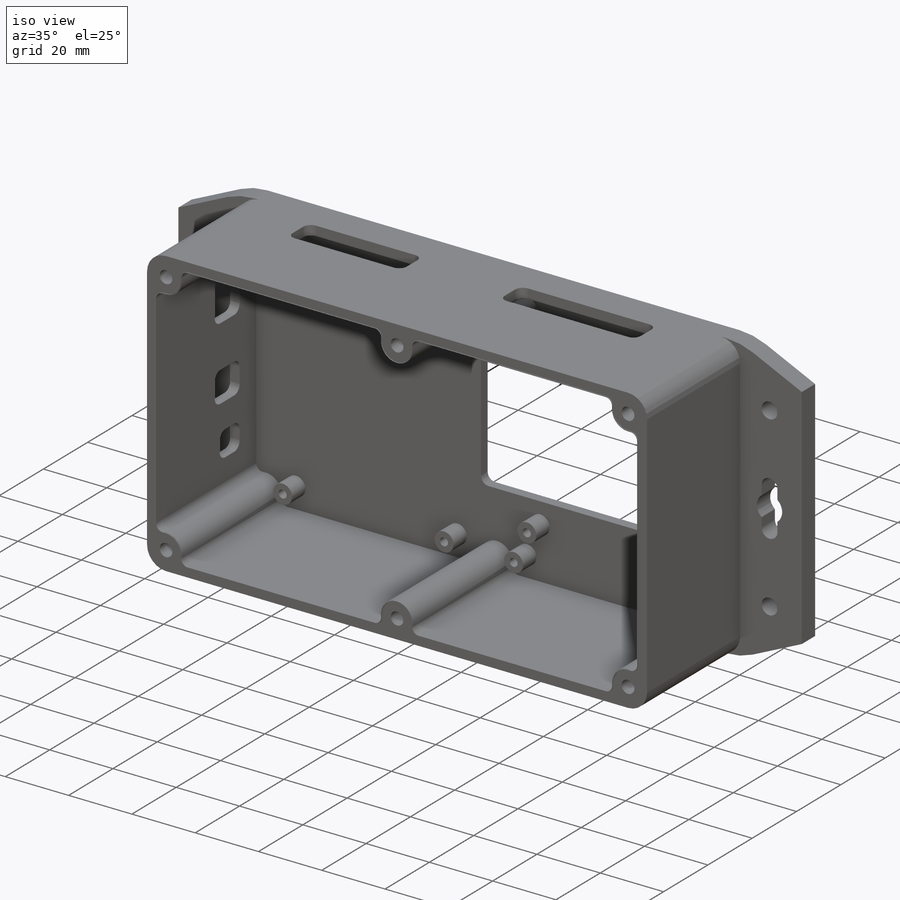
[diagram: iso view]
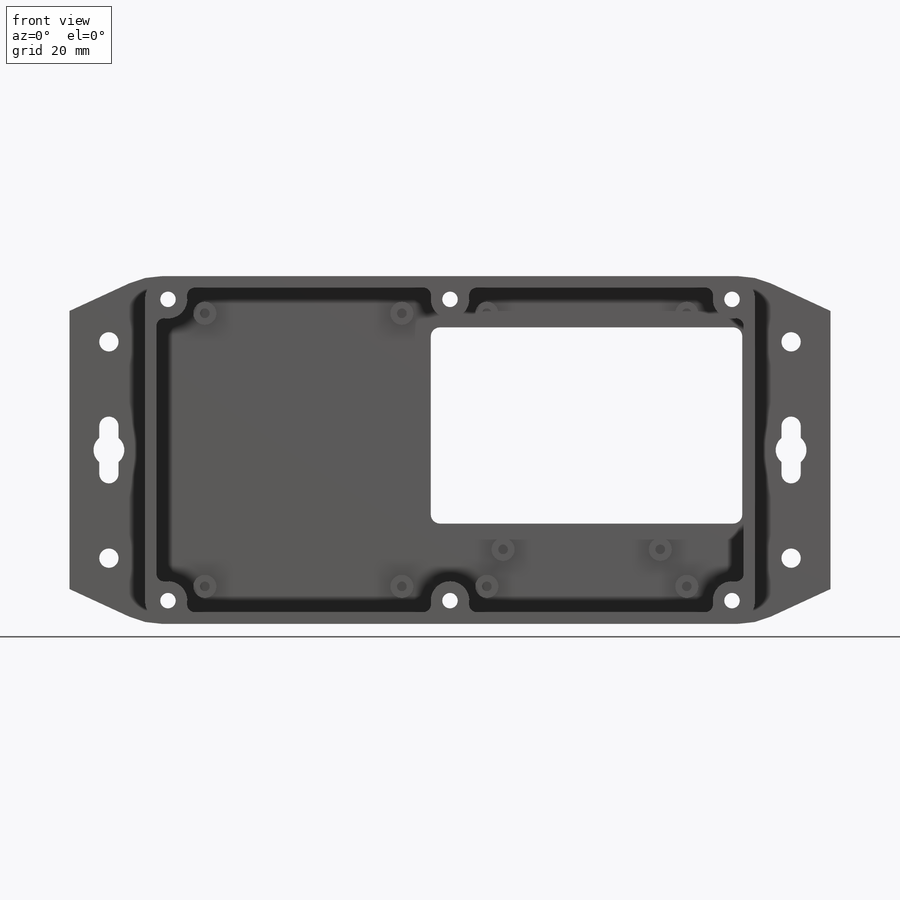
[diagram: front view]
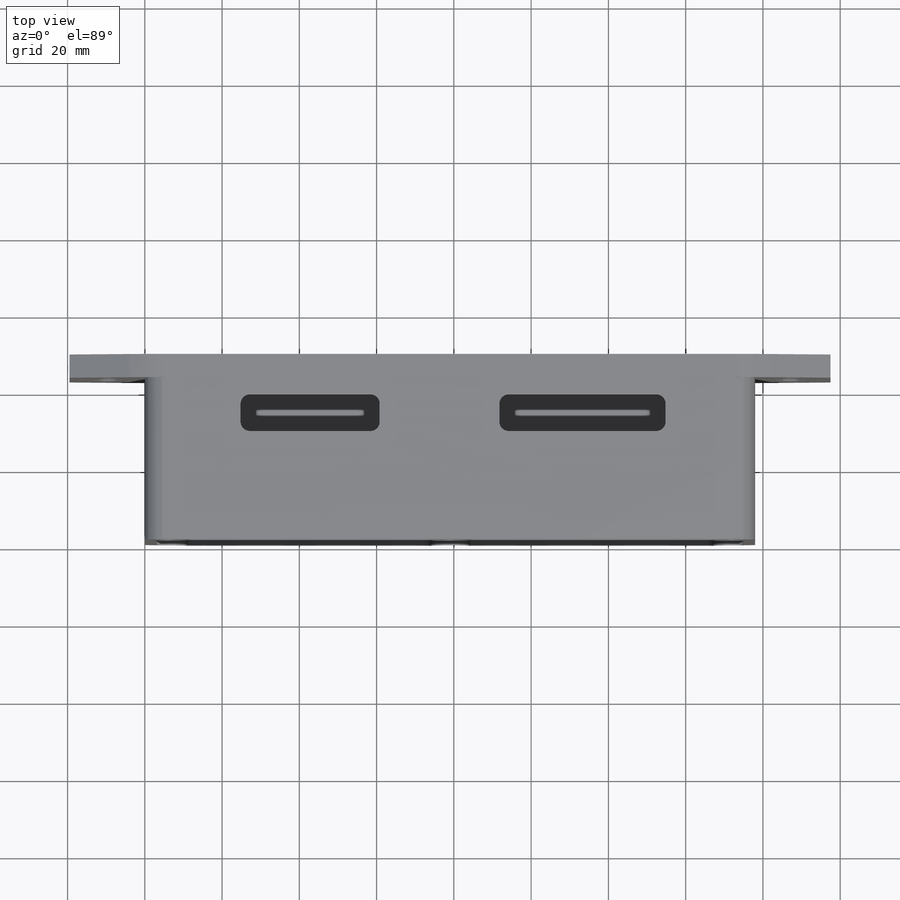
[diagram: top view]
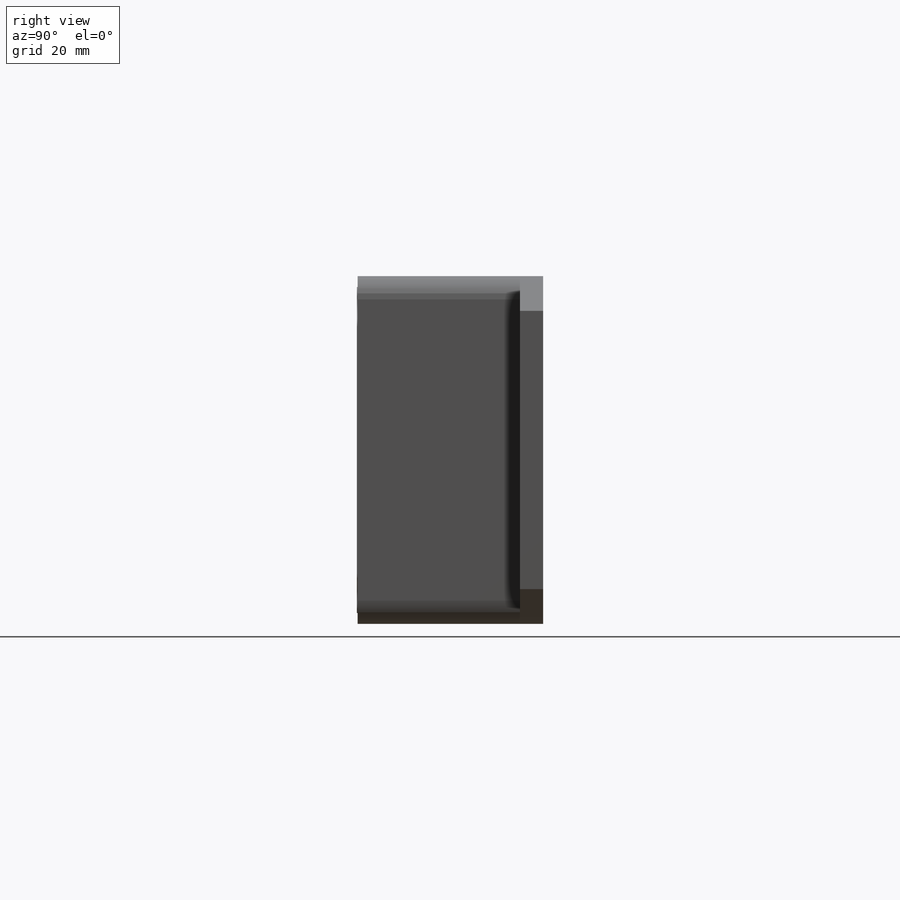
[diagram: right view]
SOLIDWORKS PART (.sldprt)
format: sldprt  version: not decoded by parser v0  size: 953,344 bytes
history: native  units: mm
features: sketch x15, fillet x6, extrude x4, cut_extrude x4, hole x3, material x1, plane x1, shell x1, mirror x1, move_body x1 (+13 scaffold rows collapsed)
feature tree (50):
  scaffold x13  (default folders/planes/origin — collapsed)
  material  "Material <not specified>"
  sketch  "Sketch1"  dims[D1=158.0mm D2=90.0mm]
  extrude  "Boss-Extrude1"  Depth=48mm
  plane  "Plane1"  Offset=79mm
  sketch  "Sketch2"  dims[D1=98.5mm D2=72.0mm]
  extrude  "Boss-Extrude2"  Depth=6mm
  hole  "Hole2"  Diameter=5mm Depth=6.001mm
  sketch  "Sketch9"  dims[D1=56.0mm D2=88.3mm]
  sketch  "Sketch8"  dims[Diameter=5.0mm Depth=6.001mm]
  sketch  "Sketch10"  dims[D1=8.0mm D2=5.0mm D3=12.3mm]
  cut_extrude  "Cut-Extrude1"  [1 undecoded]
  shell  "Shell1"  Thickness=3mm
  sketch  "Sketch7"  dims[D1=10.0mm D2=78.0mm D3=73.0mm D4=146.0mm]
  extrude  "Boss-Extrude3"  [1 undecoded]
  mirror  "Mirror1"
  hole  "Hole1"  Diameter=4mm Depth=48mm
  sketch  "Sketch6"  dims[D1=78.0mm D2=146.0mm D3=73.0mm]
  sketch  "Sketch5"  dims[Diameter=4.0mm Depth=48.0mm C-Bore Diameter=7.5mm C-Bore Depth=42.0mm]
  fillet  "Fillet3"  Radius=2mm
  sketch  "Sketch11"  dims[c1.D1=5.0mm c1.D2=2.0mm c1.D3=2.0mm c1.D4=2.0mm c1.D5=2.0mm c1.D6=2.0mm c1.D7=2.0mm c1.D8=2.0mm c1.D9=2.0mm c1.D10=5.0mm c1.D11=5.0mm c1.D12=5.0mm c1.D13=2.0mm c1.D14=2.0mm c1.D15=2.0mm c1.D16=2.0mm c2.D1=0.2mm c2.D5=0.2mm c2.D6=10.0mm c2.D7=5.0mm]
  sketch  "Sketch12"  dims[c1.D4=6.0mm c1.D1=22.0mm c1.D2=124.75mm c1.D3=70.7mm c1.D5=21.0mm c1.D6=31.0mm c1.D7=40.7mm c2.D1=51.75mm c2.D8=73.0mm c2.D5=61.5mm c2.D6=45.9mm c3.D8=73.75mm c3.D9=28.0mm c3.D10=~68.870894mm]
  extrude  "Boss-Extrude4"  Depth=6mm
  hole  "Hole3"  Diameter=2.5mm Depth=6mm
  sketch  "Sketch14"
  sketch  "Sketch13"  dims[Diameter=2.5mm Depth=6.0mm]
  fillet  "Fillet1"  Radius=6mm
  fillet  "Fillet2"  Radius=20mm
  sketch  "Sketch15"  dims[D1=71.12mm D2=50.8mm D3=13.25mm D4=27.6mm D5=4.7625mm D6=4.7625mm]
  cut_extrude  "Cut-Extrude2"  [1 undecoded]
  fillet  "Fillet4"  Radius=2.38125mm
  sketch  "Sketch16"  dims[c1.D1=10.5mm c1.D2=18.0mm c1.D3=31.0mm c1.D4=44.35mm c1.D5=54.0mm c1.D6=62.1mm c1.D7=70.1mm c1.D8=21.75mm c1.D9=7.0mm c2.D9=90.0deg c3.D9=7.0mm c4.D9=90.0deg c5.D9=19.5mm]
  cut_extrude  "Cut-Extrude3"  [1 undecoded]
  fillet  "Fillet5"  Radius=2.38125mm
  sketch  "Sketch17"  dims[D1=10.5mm D2=20.0mm D3=23.22mm D4=66.22mm D5=97.22mm D6=133.22mm]
  cut_extrude  "Cut-Extrude4"  [1 undecoded]
  fillet  "Fillet6"  Radius=2.38125mm
  move_body  "Body-Move/Copy1"
decode coverage: 27 of 35 modeling features carry decoded parameters
note: ~ marks probable driven/reference dimensions
note: 5 parameter values undecoded
summary: no parameter record found for 5 features
note: suppression state not decoded; provenance and decode notes live in map.json
